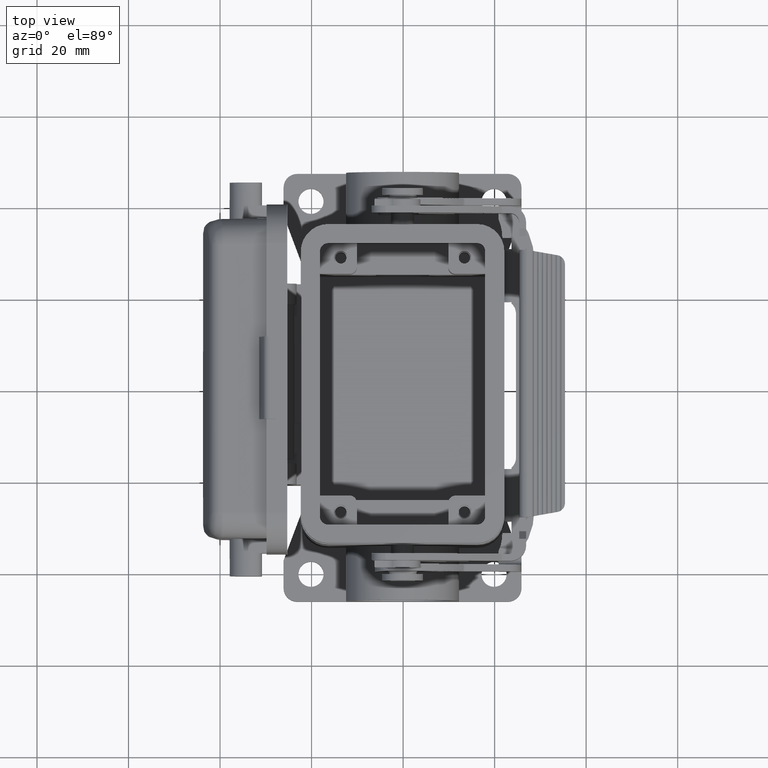
[diagram: clean part render]
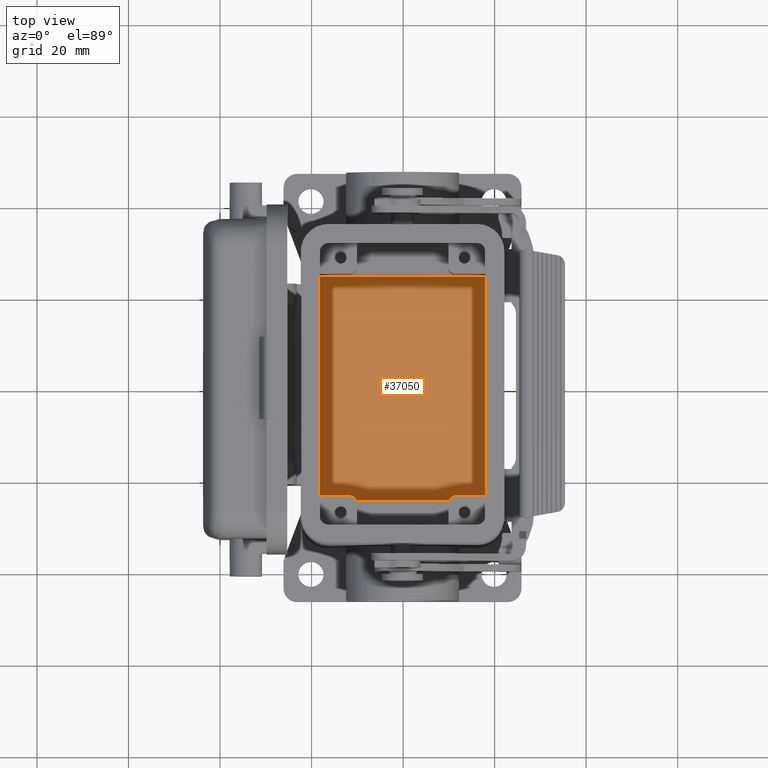
[diagram: same view with one face highlighted and labeled with its STEP entity id]
A machine part, top view. The second image highlights one B-rep face of the part: STEP entity #37050.
In plain terms, the highlighted planar face has unit normal (0, 0, 1).
Its self-contained STEP definition (entity closure, byte-faithful):
#34150=CARTESIAN_POINT('',(-19.25,10.2009618943233,-40.));
#34160=VERTEX_POINT('',#34150);
#34190=CARTESIAN_POINT('',(-19.25,10.2009618943233,-40.));
#34200=DIRECTION('',(0.,-1.,0.));
#34210=VECTOR('',#34200,20.4019237886467);
#34220=LINE('',#34190,#34210);
#34230=CARTESIAN_POINT('',(-19.25,-10.2009618943233,-40.));
#34240=VERTEX_POINT('',#34230);
#34250=EDGE_CURVE('',#34160,#34240,#34220,.T.);
#36100=CARTESIAN_POINT('',(30.,18.25,-40.));
#36110=VERTEX_POINT('',#36100);
#36140=CARTESIAN_POINT('',(18.5,18.25,-40.));
#36150=DIRECTION('',(-1.,0.,0.));
#36160=VECTOR('',#36150,37.);
#36170=LINE('',#36140,#36160);
#36180=CARTESIAN_POINT('',(-18.5,18.25,-40.));
#36190=VERTEX_POINT('',#36180);
#36200=EDGE_CURVE('',#36110,#36190,#36170,.T.);
#36430=CARTESIAN_POINT('',(-18.5,11.5,-40.));
#36440=VERTEX_POINT('',#36430);
#36470=CARTESIAN_POINT('',(-20.,11.5,-40.));
#36480=DIRECTION('',(0.,0.,-1.));
#36490=DIRECTION('',(0.,-1.,0.));
#36500=AXIS2_PLACEMENT_3D('',#36470,#36480,#36490);
#36510=CIRCLE('',#36500,1.5);
#36520=EDGE_CURVE('',#36440,#34160,#36510,.T.);
#36580=CARTESIAN_POINT('',(1.110223E-15,2.700197E-16,-40.));
#36590=DIRECTION('',(0.,0.,1.));
#36600=DIRECTION('',(1.,0.,0.));
#36610=AXIS2_PLACEMENT_3D('',#36580,#36590,#36600);
#36620=PLANE('',#36610);
#36630=ORIENTED_EDGE('',*,*,#36520,.T.);
#36640=CARTESIAN_POINT('',(-18.5,18.25,-40.));
#36650=DIRECTION('',(0.,-1.,0.));
#36660=VECTOR('',#36650,6.75);
#36670=LINE('',#36640,#36660);
#36680=EDGE_CURVE('',#36190,#36440,#36670,.T.);
#36690=ORIENTED_EDGE('',*,*,#36680,.T.);
#36700=ORIENTED_EDGE('',*,*,#36200,.T.);
#36710=CARTESIAN_POINT('',(30.,-18.25,-40.));
#36720=DIRECTION('',(0.,1.,0.));
#36730=VECTOR('',#36720,36.5);
#36740=LINE('',#36710,#36730);
#36750=CARTESIAN_POINT('',(30.,-18.25,-40.));
#36760=VERTEX_POINT('',#36750);
#36770=EDGE_CURVE('',#36760,#36110,#36740,.T.);
#36780=ORIENTED_EDGE('',*,*,#36770,.T.);
#36790=CARTESIAN_POINT('',(-7.,-18.25,-40.));
#36800=DIRECTION('',(1.,0.,0.));
#36810=VECTOR('',#36800,37.);
#36820=LINE('',#36790,#36810);
#36830=CARTESIAN_POINT('',(-18.5,-18.25,-40.));
#36840=VERTEX_POINT('',#36830);
#36850=EDGE_CURVE('',#36840,#36760,#36820,.T.);
#36860=ORIENTED_EDGE('',*,*,#36850,.T.);
#36870=CARTESIAN_POINT('',(-18.5,-11.5,-40.));
#36880=DIRECTION('',(0.,-1.,0.));
#36890=VECTOR('',#36880,6.75);
#36900=LINE('',#36870,#36890);
#36910=CARTESIAN_POINT('',(-18.5,-11.5,-40.));
#36920=VERTEX_POINT('',#36910);
#36930=EDGE_CURVE('',#36920,#36840,#36900,.T.);
#36940=ORIENTED_EDGE('',*,*,#36930,.T.);
#36950=CARTESIAN_POINT('',(-20.,-11.5,-40.));
#36960=DIRECTION('',(0.,0.,-1.));
#36970=DIRECTION('',(-1.,0.,0.));
#36980=AXIS2_PLACEMENT_3D('',#36950,#36960,#36970);
#36990=CIRCLE('',#36980,1.50000000000001);
#37000=EDGE_CURVE('',#34240,#36920,#36990,.T.);
#37010=ORIENTED_EDGE('',*,*,#37000,.T.);
#37020=ORIENTED_EDGE('',*,*,#34250,.T.);
#37030=EDGE_LOOP('',(#37020,#37010,#36940,#36860,#36780,#36700,#36690,
#36630));
#37040=FACE_OUTER_BOUND('',#37030,.T.);
#37050=ADVANCED_FACE('',(#37040),#36620,.T.);